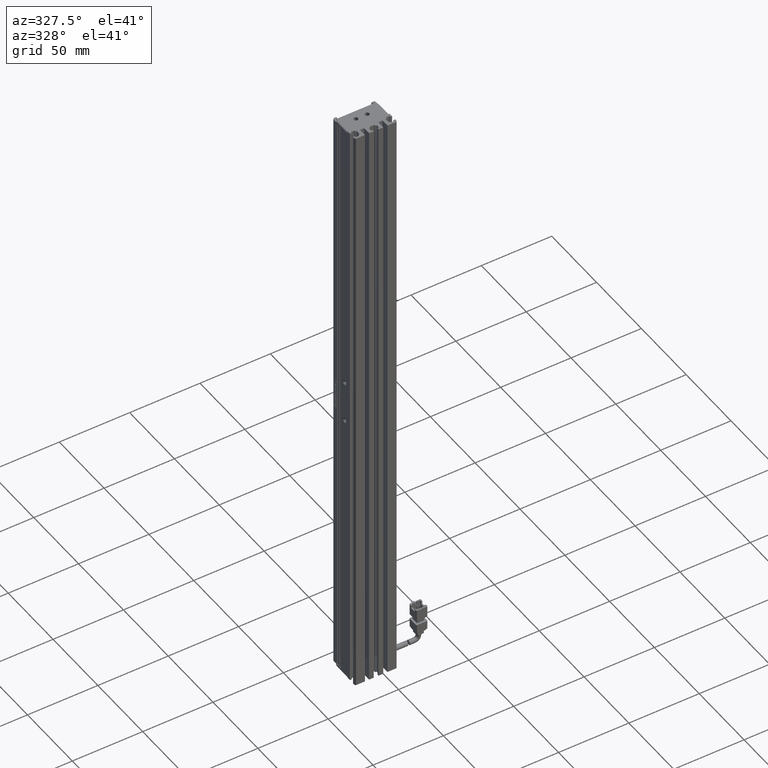
[diagram: clean part render]
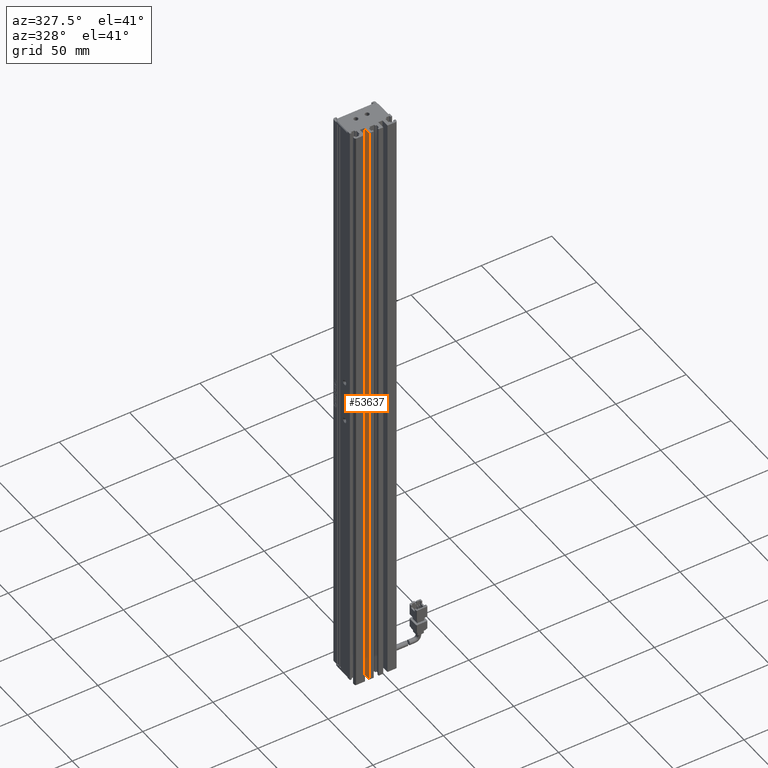
[diagram: same view with one face highlighted and labeled with its STEP entity id]
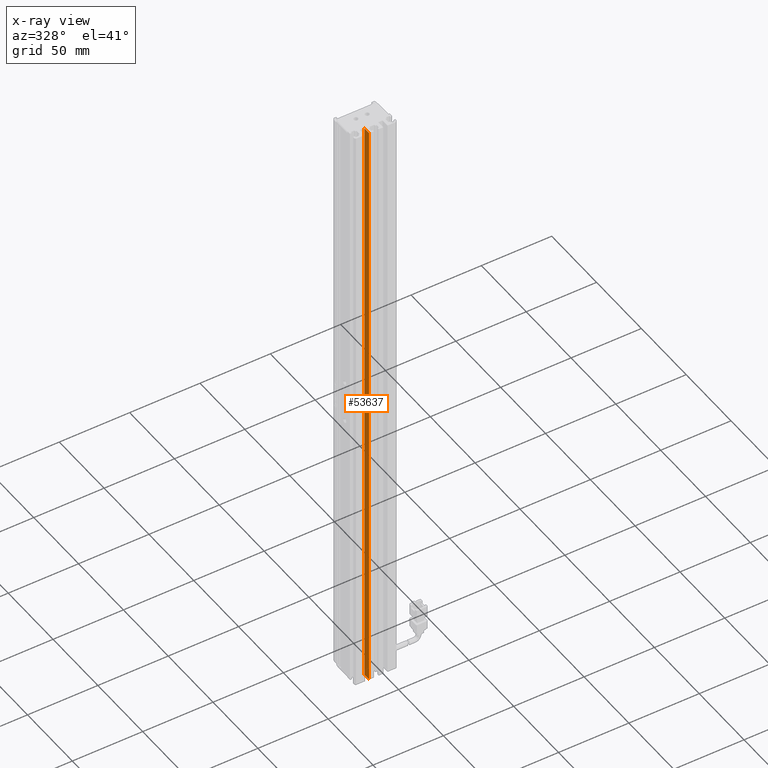
[diagram: x-ray of the same camera — body ghosted, the highlighted face saturated]
A machine part, auxiliary view. The second image highlights one B-rep face of the part: STEP entity #53637.
The next image is the same camera in x-ray: the body ghosted, the highlighted face saturated — about 0% of this face is hidden behind the body in this view.
In plain terms, the highlighted planar face has unit normal (-1, 0, 0).
Its self-contained STEP definition (entity closure, byte-faithful):
#2249 = ORIENTED_EDGE ( 'NONE', *, *, #36305, .F. ) ;
#4087 = ORIENTED_EDGE ( 'NONE', *, *, #6397, .F. ) ;
#5829 = LINE ( 'NONE', #32725, #21143 ) ;
#5836 = CARTESIAN_POINT ( 'NONE',  ( 35.92537974683543200, 16.19594479660386500, 102.0000000000000000 ) ) ;
#6397 = EDGE_CURVE ( 'NONE', #79518, #34057, #18421, .T. ) ;
#13679 = VECTOR ( 'NONE', #38431, 1000.000000000000000 ) ;
#15643 = LINE ( 'NONE', #19869, #13679 ) ;
#16283 = ORIENTED_EDGE ( 'NONE', *, *, #67312, .T. ) ;
#18421 = LINE ( 'NONE', #63113, #51072 ) ;
#18553 = CARTESIAN_POINT ( 'NONE',  ( 35.92537974683543200, 10.69594479660386800, 102.0000000000000000 ) ) ;
#19869 = CARTESIAN_POINT ( 'NONE',  ( 35.92537974683543200, 7.083797468354437600, 102.0000000000000000 ) ) ;
#21143 = VECTOR ( 'NONE', #69534, 1000.000000000000000 ) ;
#23885 = PLANE ( 'NONE',  #44806 ) ;
#27583 = CARTESIAN_POINT ( 'NONE',  ( 35.92537974683543200, 16.19594479660386500, -332.0000000000000000 ) ) ;
#30322 = DIRECTION ( 'NONE',  ( -1.000000000000000000, 0.0000000000000000000, 0.0000000000000000000 ) ) ;
#30651 = DIRECTION ( 'NONE',  ( -0.0000000000000000000, -0.0000000000000000000, -1.000000000000000000 ) ) ;
#32725 = CARTESIAN_POINT ( 'NONE',  ( 35.92537974683543200, 7.083797468354437600, -332.0000000000000000 ) ) ;
#34057 = VERTEX_POINT ( 'NONE', #42615 ) ;
#36305 = EDGE_CURVE ( 'NONE', #66392, #79518, #15643, .T. ) ;
#38431 = DIRECTION ( 'NONE',  ( -0.0000000000000000000, -1.000000000000000000, 0.0000000000000000000 ) ) ;
#39512 = ORIENTED_EDGE ( 'NONE', *, *, #60995, .T. ) ;
#42615 = CARTESIAN_POINT ( 'NONE',  ( 35.92537974683543200, 10.69594479660386800, -332.0000000000000000 ) ) ;
#44806 = AXIS2_PLACEMENT_3D ( 'NONE', #67093, #30322, #73279 ) ;
#51072 = VECTOR ( 'NONE', #57193, 1000.000000000000000 ) ;
#52258 = FACE_OUTER_BOUND ( 'NONE', #76542, .T. ) ;
#53637 = ADVANCED_FACE ( 'NONE', ( #52258 ), #23885, .T. ) ;
#57193 = DIRECTION ( 'NONE',  ( 0.0000000000000000000, -0.0000000000000000000, -1.000000000000000000 ) ) ;
#58005 = VERTEX_POINT ( 'NONE', #27583 ) ;
#60995 = EDGE_CURVE ( 'NONE', #66392, #58005, #68793, .T. ) ;
#63113 = CARTESIAN_POINT ( 'NONE',  ( 35.92537974683543200, 10.69594479660386800, 102.0000000000000000 ) ) ;
#66392 = VERTEX_POINT ( 'NONE', #5836 ) ;
#66838 = VECTOR ( 'NONE', #30651, 1000.000000000000000 ) ;
#67093 = CARTESIAN_POINT ( 'NONE',  ( 35.92537974683543200, 7.083797468354437600, 102.0000000000000000 ) ) ;
#67312 = EDGE_CURVE ( 'NONE', #58005, #34057, #5829, .T. ) ;
#68793 = LINE ( 'NONE', #73605, #66838 ) ;
#69534 = DIRECTION ( 'NONE',  ( -0.0000000000000000000, -1.000000000000000000, 0.0000000000000000000 ) ) ;
#73279 = DIRECTION ( 'NONE',  ( 0.0000000000000000000, 0.0000000000000000000, 1.000000000000000000 ) ) ;
#73605 = CARTESIAN_POINT ( 'NONE',  ( 35.92537974683543200, 16.19594479660386500, 102.0000000000000000 ) ) ;
#76542 = EDGE_LOOP ( 'NONE', ( #2249, #39512, #16283, #4087 ) ) ;
#79518 = VERTEX_POINT ( 'NONE', #18553 ) ;